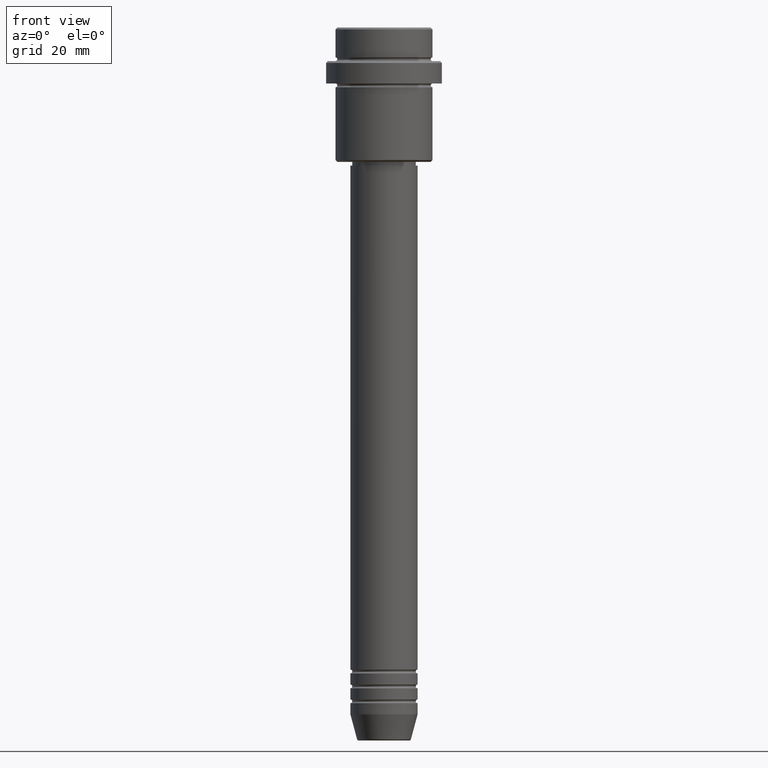
[diagram: clean part render]
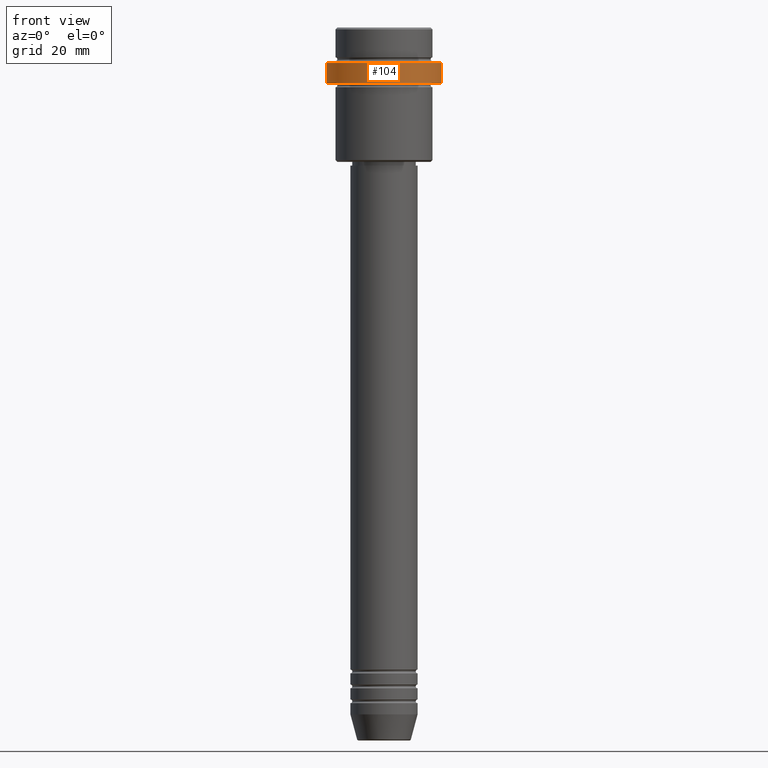
[diagram: same view with one face highlighted and labeled with its STEP entity id]
A machine part, front view. The second image highlights one B-rep face of the part: STEP entity #104.
In plain terms, the highlighted cylindrical surface (partial cylindrical patch) has radius 15.5 mm, axis along (-0, -0, 1).
Its self-contained STEP definition (entity closure, byte-faithful):
#28 = EDGE_CURVE ( 'NONE', #1111, #1268, #1344, .T. ) ;
#73 = CARTESIAN_POINT ( 'NONE',  ( -15.50000000000000000, 1.898202538678397557E-15, -15.00000000000000178 ) ) ;
#104 = ADVANCED_FACE ( 'NONE', ( #607 ), #806, .T. ) ;
#219 = LINE ( 'NONE', #1216, #1134 ) ;
#234 = EDGE_CURVE ( 'NONE', #1111, #454, #444, .T. ) ;
#262 = EDGE_CURVE ( 'NONE', #1268, #291, #219, .T. ) ;
#287 = CARTESIAN_POINT ( 'NONE',  ( -15.50000000000000000, 1.898202538678397557E-15, -9.500000000000040856 ) ) ;
#291 = VERTEX_POINT ( 'NONE', #1116 ) ;
#309 = ORIENTED_EDGE ( 'NONE', *, *, #28, .T. ) ;
#325 = DIRECTION ( 'NONE',  ( -0.000000000000000000, -0.000000000000000000, 1.000000000000000000 ) ) ;
#338 = DIRECTION ( 'NONE',  ( -0.000000000000000000, -0.000000000000000000, 1.000000000000000000 ) ) ;
#347 = ORIENTED_EDGE ( 'NONE', *, *, #262, .T. ) ;
#444 = LINE ( 'NONE', #1297, #523 ) ;
#452 = AXIS2_PLACEMENT_3D ( 'NONE', #691, #922, #1028 ) ;
#454 = VERTEX_POINT ( 'NONE', #287 ) ;
#523 = VECTOR ( 'NONE', #338, 1000.000000000000000 ) ;
#555 = CARTESIAN_POINT ( 'NONE',  ( 15.50000000000000000, 0.000000000000000000, -15.00000000000000178 ) ) ;
#574 = DIRECTION ( 'NONE',  ( 1.000000000000000000, 0.000000000000000000, 0.000000000000000000 ) ) ;
#607 = FACE_OUTER_BOUND ( 'NONE', #1182, .T. ) ;
#623 = DIRECTION ( 'NONE',  ( 1.000000000000000000, 0.000000000000000000, 0.000000000000000000 ) ) ;
#651 = ORIENTED_EDGE ( 'NONE', *, *, #234, .F. ) ;
#674 = DIRECTION ( 'NONE',  ( -0.000000000000000000, -0.000000000000000000, 1.000000000000000000 ) ) ;
#691 = CARTESIAN_POINT ( 'NONE',  ( 0.000000000000000000, 0.000000000000000000, 0.000000000000000000 ) ) ;
#719 = EDGE_CURVE ( 'NONE', #291, #454, #1263, .T. ) ;
#806 = CYLINDRICAL_SURFACE ( 'NONE', #452, 15.50000000000000000 ) ;
#821 = DIRECTION ( 'NONE',  ( 0.000000000000000000, 0.000000000000000000, -1.000000000000000000 ) ) ;
#830 = CARTESIAN_POINT ( 'NONE',  ( 0.000000000000000000, 0.000000000000000000, -9.500000000000040856 ) ) ;
#840 = AXIS2_PLACEMENT_3D ( 'NONE', #1089, #674, #574 ) ;
#878 = AXIS2_PLACEMENT_3D ( 'NONE', #830, #821, #623 ) ;
#922 = DIRECTION ( 'NONE',  ( -0.000000000000000000, -0.000000000000000000, 1.000000000000000000 ) ) ;
#1028 = DIRECTION ( 'NONE',  ( 1.000000000000000000, 0.000000000000000000, 0.000000000000000000 ) ) ;
#1089 = CARTESIAN_POINT ( 'NONE',  ( 0.000000000000000000, 0.000000000000000000, -15.00000000000000178 ) ) ;
#1111 = VERTEX_POINT ( 'NONE', #73 ) ;
#1116 = CARTESIAN_POINT ( 'NONE',  ( 15.50000000000000000, 0.000000000000000000, -9.500000000000040856 ) ) ;
#1134 = VECTOR ( 'NONE', #325, 1000.000000000000000 ) ;
#1182 = EDGE_LOOP ( 'NONE', ( #651, #309, #347, #1223 ) ) ;
#1216 = CARTESIAN_POINT ( 'NONE',  ( 15.50000000000000000, 0.000000000000000000, 0.000000000000000000 ) ) ;
#1223 = ORIENTED_EDGE ( 'NONE', *, *, #719, .T. ) ;
#1263 = CIRCLE ( 'NONE', #878, 15.50000000000000000 ) ;
#1268 = VERTEX_POINT ( 'NONE', #555 ) ;
#1297 = CARTESIAN_POINT ( 'NONE',  ( -15.50000000000000000, 1.898202538678397557E-15, 0.000000000000000000 ) ) ;
#1344 = CIRCLE ( 'NONE', #840, 15.50000000000000000 ) ;